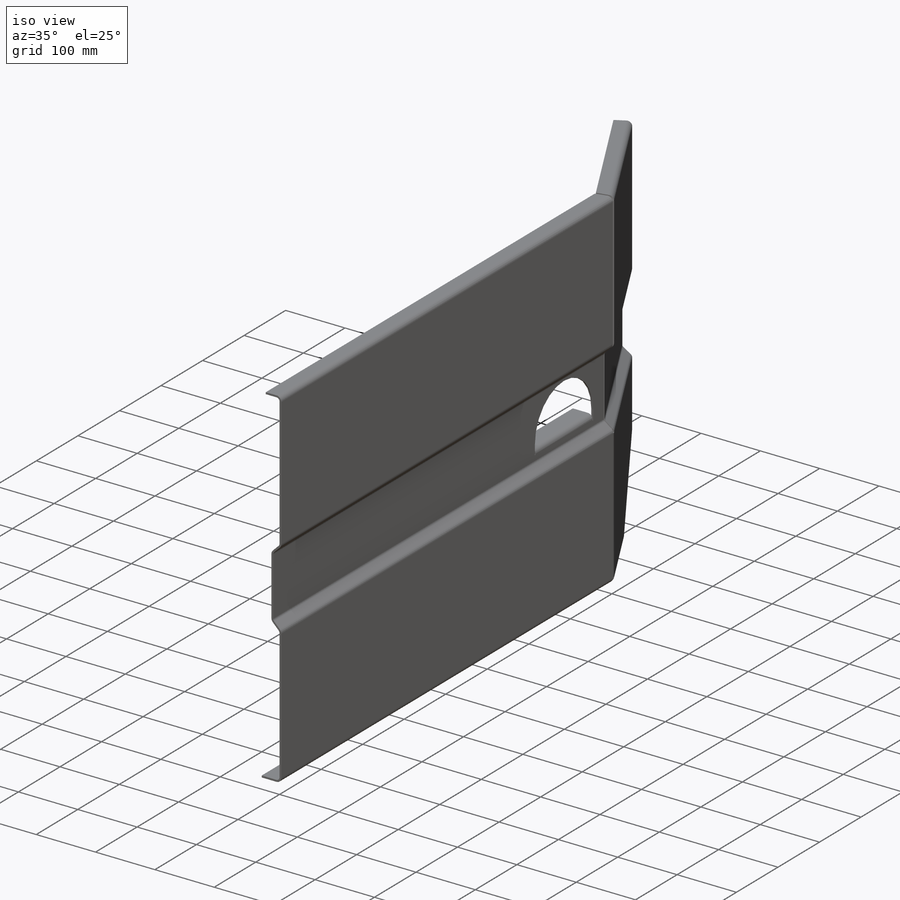
[diagram: iso view]
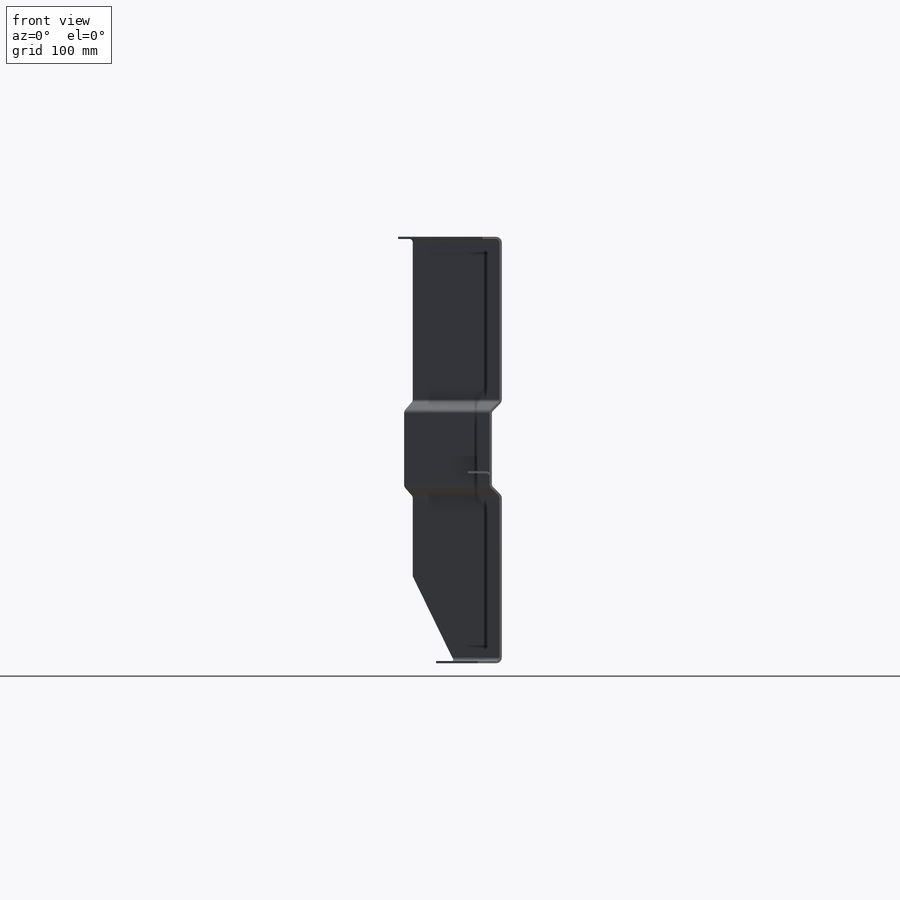
[diagram: front view]
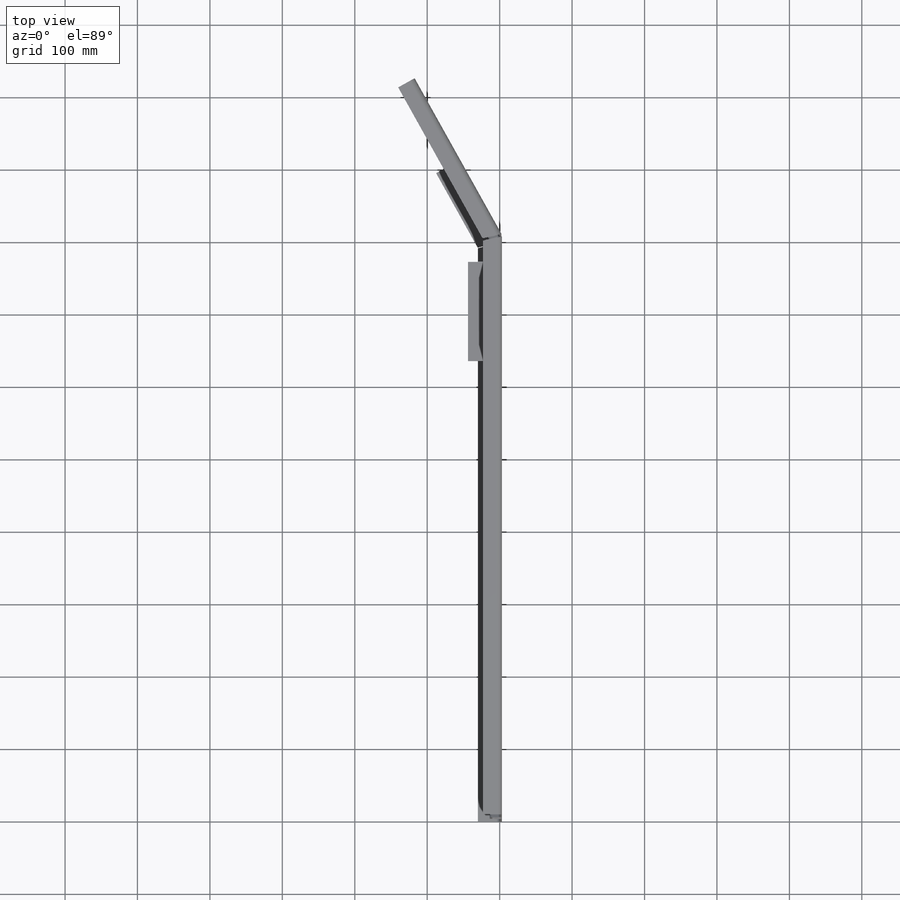
[diagram: top view]
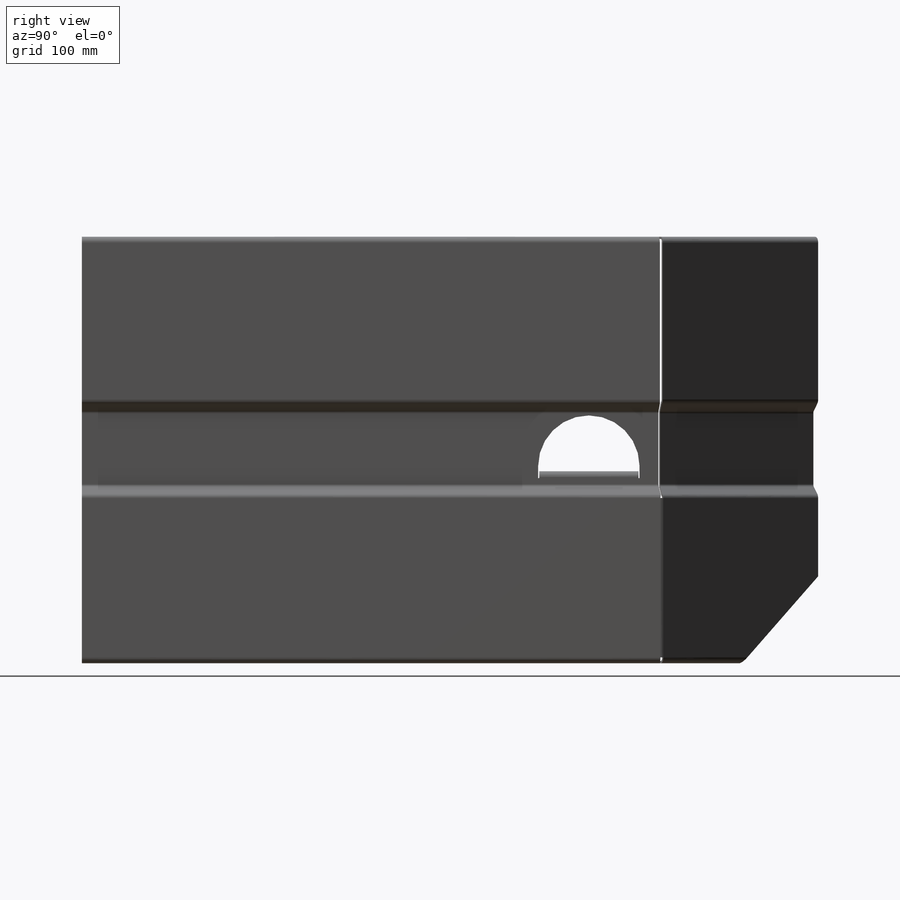
[diagram: right view]
SOLIDWORKS PART (.sldprt)
format: sldprt  version: not decoded by parser v0  size: 830,464 bytes
history: native  units: mm
features: sketch x38, sheet_metal_op x23, extrude x9, plane x3, material x1, cut_extrude x1 + 89 further entries (+9 scaffold rows collapsed; 10 parser-record rows omitted)
feature tree (183):
  scaffold x9  (default folders/planes/origin — collapsed)
  material  "1.0553 (S355J0)"
  plane  "Ebene vorne"
  plane  "Ebene oben"
  plane  "Ebene rechts"
  sketch  "Skizze1"  dims[c1.D1=255.0mm c1.D2=800.0mm c1.D3=120.0mm c1.D4=215.0mm c2.D1=800.0mm c3.D1=~119.167613deg c4.D1=~2617.993878mm c4.D3=255.0mm c4.D4=800.0mm c5.D1=120.0mm c5.D3=215.0mm c6.D1=5.0mm c6.D2=0.5 c6.D3=0.0mm c6.D6=500.0mm]
  sheet_metal_op  "Basis-Blech1"
  sketch  "Skizze10"
  sketch  "Skizze11"  dims[D1=5.0mm D4=~785.398163mm D5=0.0deg D8=1.5mm D9=1.5mm]
  sheet_metal_op  "Kantenbiegung21"  Kante-Lasche3=0
  sketch  "Skizze18"
  sketch  "Skizze19"
  sheet_metal_op  "Kantenbiegung4"
  sheet_metal_op  "Kantenbiegung5"  Kante-Lasche4=0
  sketch  "Skizze24"  dims[D1=16.0mm]
  sketch  "Skizze25"  dims[D1=16.0mm]
  sheet_metal_op  "Kantenbiegung22"
  sheet_metal_op  "Kantenbiegung23"  Kante-Lasche5=0
  sketch  "Skizze30"
  sketch  "Skizze31"
  sheet_metal_op  "Kantenbiegung8"
  sheet_metal_op  "Kantenbiegung9"  Kante-Lasche8=0
  sketch  "Skizze48"
  sketch  "Skizze49"
  sheet_metal_op  "Kantenbiegung14"
  sheet_metal_op  "Kantenbiegung15"  Kante-Lasche9=0
  sketch  "Skizze62"
  sketch  "Skizze63"
  sheet_metal_op  "Kantenbiegung16"
  sheet_metal_op  "Kantenbiegung17"
  sketch  "Skizze68"  dims[D1=120.0mm D2=120.0mm]
  cut_extrude  "Schnitt-Linear austragen7"  [1 undecoded]
  sketch  "Skizze69"  dims[c1.D1=~142.495503mm c1.D2=140.0mm c2.D1=309.88mm c2.D3=25.0mm c2.D4=10.0mm c2.Schnitt-Linear austragen8=65536.0 c3.D1=10.0mm c3.Kante-Lasche10=0.0]
  sketch  "Skizze73"  dims[D1=1.5mm D2=1.5mm]
  sheet_metal_op  "Kantenbiegung24"
  sketch  "Biegung-Linien1"
  sketch  "Rahmen1"
  sheet_metal_op  "Blech1"
  "Abwicklung1"
  sketch  "Biegung-Linien2"
  sketch  "Rahmen2"
  parser-record x10  (decoder bookkeeping rows leaked as tree rows — omitted from the tree; the rows remain in map.json)
  extrude  "Blech2"  Depth=5mm
  sheet_metal_op  "Abwicklung1"
  sketch  "Biegung-Linien2"
  sketch  "Rahmen2"
  "Abwickeln-<Basisbiegung1>1"
  "Abwickeln-<Kantenbiegung20>1"
  "Abwickeln-<Kantenbiegung21>1"
  extrude  "Blech3"  Depth=5mm
  sheet_metal_op  "Abwicklung1"
  sketch  "Biegung-Linien2"
  sketch  "Rahmen2"
  "Abwickeln-<Basisbiegung1>1"
  "Abwickeln-<Kantenbiegung4>1"
  "Abwickeln-<Kantenbiegung5>1"
  "Abwickeln-<Kantenbiegung20>2"
  "Abwickeln-<Kantenbiegung21>2"
  extrude  "Blech4"  Depth=5mm
  sheet_metal_op  "Abwicklung1"
  sketch  "Biegung-Linien2"
  sketch  "Rahmen2"
  "Abwickeln-<Basisbiegung1>1"
  "Abwickeln-<Kantenbiegung4>1"
  "Abwickeln-<Kantenbiegung5>1"
  "Abwickeln-<Kantenbiegung20>3"
  "Abwickeln-<Kantenbiegung21>3"
  "Abwickeln-<Kantenbiegung22>1"
  "Abwickeln-<Kantenbiegung23>1"
  extrude  "Blech5"  Depth=5mm
  sheet_metal_op  "Abwicklung1"
  sketch  "Biegung-Linien2"
  sketch  "Rahmen2"
  "Abwickeln-<Basisbiegung1>1"
  "Abwickeln-<Kantenbiegung4>1"
  "Abwickeln-<Kantenbiegung5>1"
  "Abwickeln-<Kantenbiegung8>1"
  "Abwickeln-<Kantenbiegung9>1"
  "Abwickeln-<Kantenbiegung20>4"
  "Abwickeln-<Kantenbiegung21>4"
  "Abwickeln-<Kantenbiegung22>2"
  "Abwickeln-<Kantenbiegung23>2"
  extrude  "Blech8"  Depth=5mm
  sheet_metal_op  "Abwicklung1"
  sketch  "Biegung-Linien2"
  sketch  "Rahmen2"
  "Abwickeln-<Basisbiegung1>1"
  "Abwickeln-<Kantenbiegung4>1"
  "Abwickeln-<Kantenbiegung5>1"
  "Abwickeln-<Kantenbiegung8>1"
  "Abwickeln-<Kantenbiegung9>1"
  "Abwickeln-<Kantenbiegung14>1"
  "Abwickeln-<Kantenbiegung15>1"
  "Abwickeln-<Kantenbiegung20>5"
  "Abwickeln-<Kantenbiegung21>5"
  "Abwickeln-<Kantenbiegung22>3"
  "Abwickeln-<Kantenbiegung23>3"
  extrude  "Blech10"  Depth=5mm
  sheet_metal_op  "Abwicklung1"
  sketch  "Biegung-Linien2"
  sketch  "Rahmen2"
  "Abwickeln-<Basisbiegung1>1"
  "Abwickeln-<Kantenbiegung4>1"
  "Abwickeln-<Kantenbiegung5>1"
  "Abwickeln-<Kantenbiegung8>1"
  "Abwickeln-<Kantenbiegung9>1"
  "Abwickeln-<Kantenbiegung14>1"
  "Abwickeln-<Kantenbiegung15>1"
  "Abwickeln-<Kantenbiegung16>1"
  "Abwickeln-<Kantenbiegung17>1"
  "Abwickeln-<Kantenbiegung20>6"
  "Abwickeln-<Kantenbiegung21>6"
  "Abwickeln-<Kantenbiegung22>4"
  "Abwickeln-<Kantenbiegung23>4"
  extrude  "Blech12"  Depth=5mm
  sheet_metal_op  "Abwicklung1"
  sketch  "Biegung-Linien2"
  sketch  "Rahmen2"
  "Abwickeln-<Basisbiegung1>1"
  "Abwickeln-<Kantenbiegung4>1"
  "Abwickeln-<Kantenbiegung5>1"
  "Abwickeln-<Kantenbiegung8>1"
  "Abwickeln-<Kantenbiegung9>1"
  "Abwickeln-<Kantenbiegung14>1"
  "Abwickeln-<Kantenbiegung15>1"
  "Abwickeln-<Kantenbiegung16>1"
  "Abwickeln-<Kantenbiegung17>1"
  "Abwickeln-<Kantenbiegung20>6"
  "Abwickeln-<Kantenbiegung21>6"
  "Abwickeln-<Kantenbiegung22>4"
  "Abwickeln-<Kantenbiegung23>4"
  extrude  "Blech13"  Depth=5mm
  sheet_metal_op  "Abwicklung1"
  sketch  "Biegung-Linien2"
  sketch  "Rahmen2"
  "Abwickeln-<Basisbiegung1>1"
  "Abwickeln-<Kantenbiegung4>1"
  "Abwickeln-<Kantenbiegung5>1"
  "Abwickeln-<Kantenbiegung8>1"
  "Abwickeln-<Kantenbiegung9>1"
  "Abwickeln-<Kantenbiegung14>1"
  "Abwickeln-<Kantenbiegung15>1"
  "Abwickeln-<Kantenbiegung16>1"
  "Abwickeln-<Kantenbiegung17>1"
  "Abwickeln-<Kantenbiegung20>6"
  "Abwickeln-<Kantenbiegung21>6"
  "Abwickeln-<Kantenbiegung22>4"
  "Abwickeln-<Kantenbiegung23>4"
  extrude  "Blech14"  Depth=5mm
  sheet_metal_op  "Abwicklung1"
  sketch  "Biegung-Linien2"
  sketch  "Rahmen2"
  "Abwickeln-<Basisbiegung1>1"
  "Abwickeln-<Kantenbiegung4>1"
  "Abwickeln-<Kantenbiegung5>1"
  "Abwickeln-<Kantenbiegung8>1"
  "Abwickeln-<Kantenbiegung9>1"
  "Abwickeln-<Kantenbiegung14>1"
  "Abwickeln-<Kantenbiegung15>1"
  "Abwickeln-<Kantenbiegung16>1"
  "Abwickeln-<Kantenbiegung17>1"
  "Abwickeln-<Kantenbiegung20>6"
  "Abwickeln-<Kantenbiegung21>6"
  "Abwickeln-<Kantenbiegung22>4"
  "Abwickeln-<Kantenbiegung23>4"
  "Abwickeln-<Kantenbiegung24>1"
decode coverage: 21 of 71 modeling features carry decoded parameters; 89 rows unclassified (native names shown)
note: ~ marks probable driven/reference dimensions
note: 1 parameter value undecoded
note: suppression state not decoded; provenance and decode notes live in map.json
